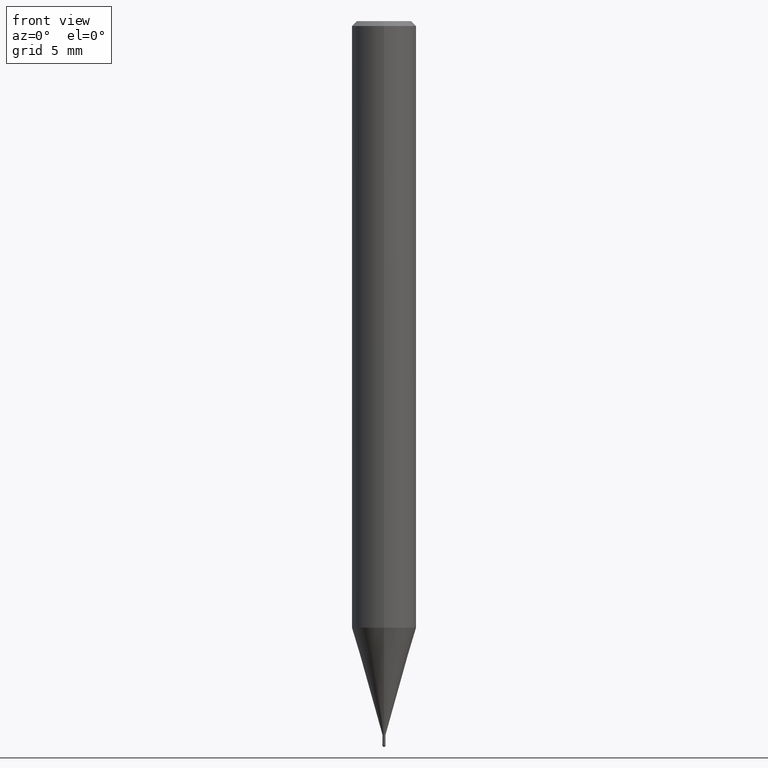
[diagram: clean part render]
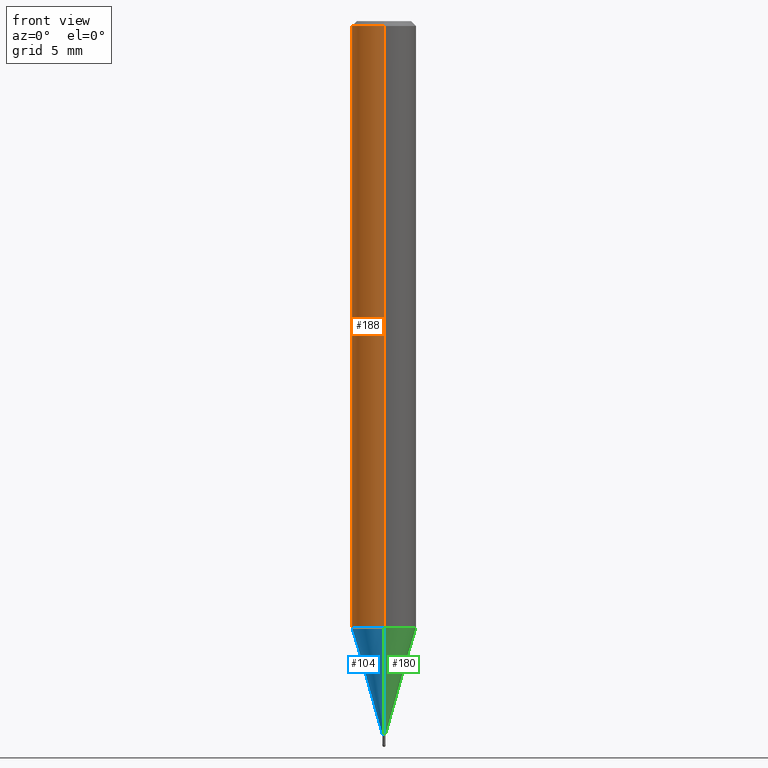
[diagram: same view with three faces highlighted in distinct colors, each labeled with its STEP entity id]
A machine part, front view with three faces highlighted in distinct colors.
Their STEP definitions:

[orange] entity #188 — the highlighted cylindrical surface (edge-blend (fillet) strip) has radius 2 mm, axis along (-0, -0, 1).
#96=EDGE_CURVE('',#208,#200,#237,.T.);
#98=VERTEX_POINT('',#239);
#132=EDGE_CURVE('',#208,#98,#280,.T.);
#144=EDGE_CURVE('',#150,#98,#294,.T.);
#150=VERTEX_POINT('',#300);
#166=EDGE_CURVE('',#200,#150,#317,.T.);
#188=ADVANCED_FACE('',(#344),#345,.T.);
#200=VERTEX_POINT('',#358);
#208=VERTEX_POINT('',#366);
#237=LINE('',#389,#390);
#239=CARTESIAN_POINT('',(0.0,2.0,-37.606));
#280=CIRCLE('',#444,2.0);
#294=LINE('',#459,#460);
#300=CARTESIAN_POINT('',(0.0,2.0,-0.299999999999997));
#317=CIRCLE('',#489,2.0);
#344=FACE_OUTER_BOUND('',#520,.T.);
#345=CYLINDRICAL_SURFACE('',#521,2.0);
#358=CARTESIAN_POINT('',(2.44921270764475E-016,-2.0,-0.299999999999997));
#366=CARTESIAN_POINT('',(2.44921270764475E-016,-2.0,-37.606));
#389=CARTESIAN_POINT('',(2.44921270764475E-016,-2.0,-18.953));
#390=VECTOR('',#562,1.0);
#444=AXIS2_PLACEMENT_3D('',#628,#629,#630);
#459=CARTESIAN_POINT('',(-2.44921270764475E-016,2.0,-18.953));
#460=VECTOR('',#643,1.0);
#489=AXIS2_PLACEMENT_3D('',#667,#668,#669);
#520=EDGE_LOOP('',(#713,#714,#715,#716));
#521=AXIS2_PLACEMENT_3D('',#717,#718,#719);
#562=DIRECTION('',(-0.0,-0.0,1.0));
#628=CARTESIAN_POINT('',(0.0,0.0,-37.606));
#629=DIRECTION('',(0.0,0.0,-1.0));
#630=DIRECTION('',(0.0,1.0,0.0));
#643=DIRECTION('',(0.0,0.0,-1.0));
#667=CARTESIAN_POINT('',(0.0,0.0,-0.299999999999997));
#668=DIRECTION('',(0.0,0.0,-1.0));
#669=DIRECTION('',(0.0,1.0,0.0));
#713=ORIENTED_EDGE('',*,*,#144,.T.);
#714=ORIENTED_EDGE('',*,*,#132,.F.);
#715=ORIENTED_EDGE('',*,*,#96,.T.);
#716=ORIENTED_EDGE('',*,*,#166,.T.);
#717=CARTESIAN_POINT('',(0.0,0.0,-18.953));
#718=DIRECTION('',(-0.0,-0.0,1.0));
#719=DIRECTION('',(0.0,1.0,0.0));

[blue] entity #104 — the highlighted conical surface has half-angle 15.999 deg.
#104=ADVANCED_FACE('',(#246),#247,.T.);
#116=VERTEX_POINT('',#262);
#124=EDGE_CURVE('',#130,#212,#272,.T.);
#130=VERTEX_POINT('',#278);
#142=VERTEX_POINT('',#292);
#176=EDGE_CURVE('',#116,#142,#329,.T.);
#182=EDGE_CURVE('',#142,#212,#336,.T.);
#204=EDGE_CURVE('',#130,#116,#362,.T.);
#212=VERTEX_POINT('',#370);
#246=FACE_OUTER_BOUND('',#400,.T.);
#247=CONICAL_SURFACE('',#401,1.04745,0.279233718115795);
#262=CARTESIAN_POINT('',(2.44915147732706E-016,-1.99995,-37.606));
#272=CIRCLE('',#431,0.09495);
#278=CARTESIAN_POINT('',(1.16276373295435E-017,-0.09495,-44.25));
#292=CARTESIAN_POINT('',(0.0,1.99995,-37.606));
#329=CIRCLE('',#504,1.99995);
#336=LINE('',#511,#512);
#362=LINE('',#545,#546);
#370=CARTESIAN_POINT('',(0.0,0.09495,-44.25));
#400=EDGE_LOOP('',(#573,#574,#575,#576));
#401=AXIS2_PLACEMENT_3D('',#577,#578,#579);
#431=AXIS2_PLACEMENT_3D('',#623,#624,#625);
#504=AXIS2_PLACEMENT_3D('',#685,#686,#687);
#511=CARTESIAN_POINT('',(-1.28271392531125E-016,1.04745,-40.928));
#512=VECTOR('',#697,1.0);
#545=CARTESIAN_POINT('',(1.28271392531125E-016,-1.04745,-40.928));
#546=VECTOR('',#736,1.0);
#573=ORIENTED_EDGE('',*,*,#182,.T.);
#574=ORIENTED_EDGE('',*,*,#124,.F.);
#575=ORIENTED_EDGE('',*,*,#204,.T.);
#576=ORIENTED_EDGE('',*,*,#176,.T.);
#577=CARTESIAN_POINT('',(0.0,0.0,-40.928));
#578=DIRECTION('',(-0.0,-0.0,1.0));
#579=DIRECTION('',(0.0,1.0,0.0));
#623=CARTESIAN_POINT('',(0.0,0.0,-44.25));
#624=DIRECTION('',(0.0,0.0,-1.0));
#625=DIRECTION('',(0.0,1.0,0.0));
#685=CARTESIAN_POINT('',(0.0,0.0,-37.606));
#686=DIRECTION('',(0.0,0.0,-1.0));
#687=DIRECTION('',(0.0,1.0,0.0));
#697=DIRECTION('',(3.37524935540219E-017,-0.275619128127744,-0.961266922457078));
#736=DIRECTION('',(3.37524935540219E-017,-0.275619128127744,0.961266922457078));

[green] entity #180 — the highlighted conical surface has half-angle 15.999 deg.
#102=EDGE_CURVE('',#212,#130,#244,.T.);
#116=VERTEX_POINT('',#262);
#130=VERTEX_POINT('',#278);
#142=VERTEX_POINT('',#292);
#160=EDGE_CURVE('',#142,#116,#311,.T.);
#180=ADVANCED_FACE('',(#333),#334,.T.);
#182=EDGE_CURVE('',#142,#212,#336,.T.);
#204=EDGE_CURVE('',#130,#116,#362,.T.);
#212=VERTEX_POINT('',#370);
#244=CIRCLE('',#398,0.09495);
#262=CARTESIAN_POINT('',(2.44915147732706E-016,-1.99995,-37.606));
#278=CARTESIAN_POINT('',(1.16276373295435E-017,-0.09495,-44.25));
#292=CARTESIAN_POINT('',(0.0,1.99995,-37.606));
#311=CIRCLE('',#480,1.99995);
#333=FACE_OUTER_BOUND('',#507,.T.);
#334=CONICAL_SURFACE('',#508,1.04745,0.279233718115795);
#336=LINE('',#511,#512);
#362=LINE('',#545,#546);
#370=CARTESIAN_POINT('',(0.0,0.09495,-44.25));
#398=AXIS2_PLACEMENT_3D('',#569,#570,#571);
#480=AXIS2_PLACEMENT_3D('',#658,#659,#660);
#507=EDGE_LOOP('',(#690,#691,#692,#693));
#508=AXIS2_PLACEMENT_3D('',#694,#695,#696);
#511=CARTESIAN_POINT('',(-1.28271392531125E-016,1.04745,-40.928));
#512=VECTOR('',#697,1.0);
#545=CARTESIAN_POINT('',(1.28271392531125E-016,-1.04745,-40.928));
#546=VECTOR('',#736,1.0);
#569=CARTESIAN_POINT('',(0.0,0.0,-44.25));
#570=DIRECTION('',(0.0,0.0,-1.0));
#571=DIRECTION('',(0.0,1.0,0.0));
#658=CARTESIAN_POINT('',(0.0,0.0,-37.606));
#659=DIRECTION('',(0.0,0.0,-1.0));
#660=DIRECTION('',(0.0,1.0,0.0));
#690=ORIENTED_EDGE('',*,*,#182,.F.);
#691=ORIENTED_EDGE('',*,*,#160,.T.);
#692=ORIENTED_EDGE('',*,*,#204,.F.);
#693=ORIENTED_EDGE('',*,*,#102,.F.);
#694=CARTESIAN_POINT('',(0.0,0.0,-40.928));
#695=DIRECTION('',(-0.0,-0.0,1.0));
#696=DIRECTION('',(0.0,1.0,0.0));
#697=DIRECTION('',(3.37524935540219E-017,-0.275619128127744,-0.961266922457078));
#736=DIRECTION('',(3.37524935540219E-017,-0.275619128127744,0.961266922457078));